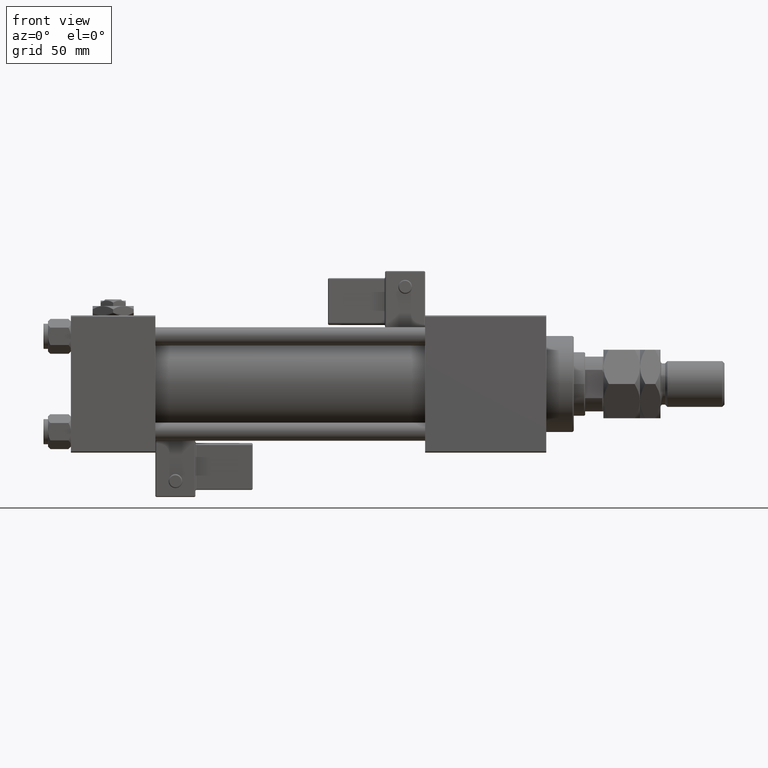
[diagram: clean part render]
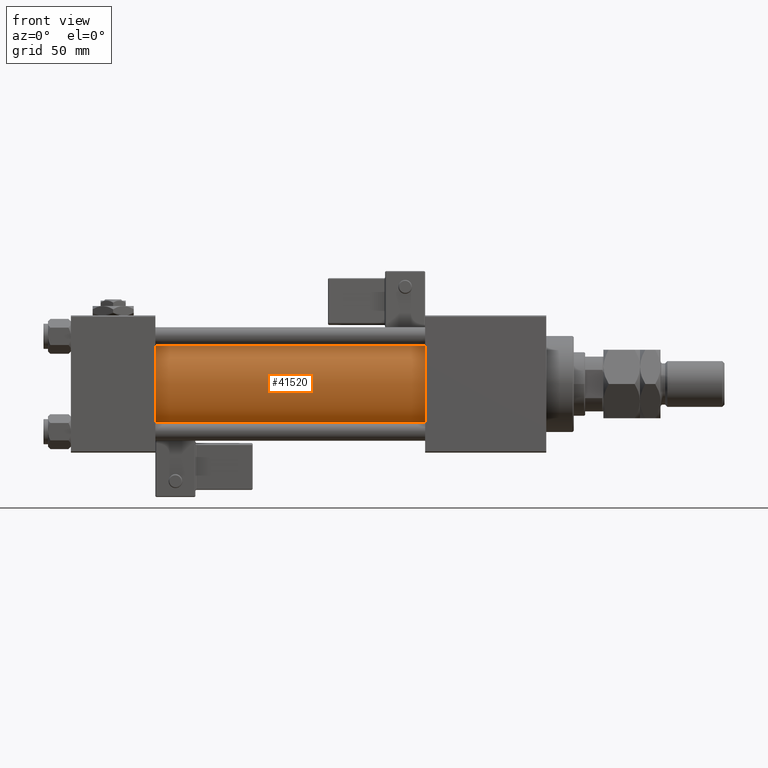
[diagram: same view with one face highlighted and labeled with its STEP entity id]
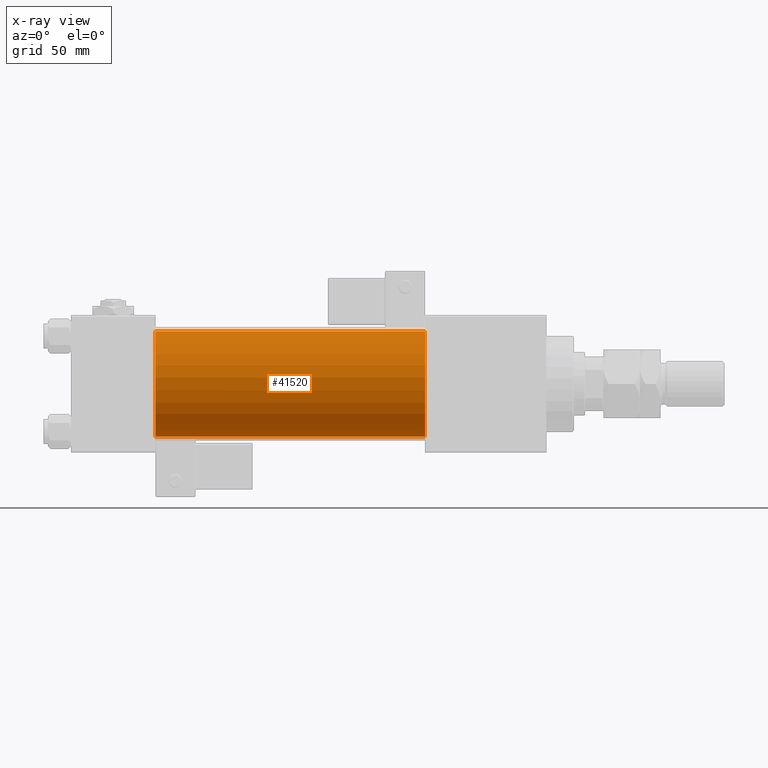
[diagram: x-ray of the same camera — body ghosted, the highlighted face saturated]
A machine part, front view. The second image highlights one B-rep face of the part: STEP entity #41520.
The next image is the same camera in x-ray: the body ghosted, the highlighted face saturated — about 0% of this face is hidden behind the body in this view.
In plain terms, the highlighted cylindrical surface (partial cylindrical patch) has radius 23 mm, axis along (-1, -0, -0).
Its self-contained STEP definition (entity closure, byte-faithful):
#4861 = LINE ( 'NONE', #17005, #7028 ) ;
#5184 = DIRECTION ( 'NONE',  ( 0.000000000000000000, 0.000000000000000000, -1.000000000000000000 ) ) ;
#7028 = VECTOR ( 'NONE', #29723, 1000.000000000000000 ) ;
#7266 = AXIS2_PLACEMENT_3D ( 'NONE', #35933, #18163, #5184 ) ;
#7688 = CARTESIAN_POINT ( 'NONE',  ( 155.0000000000000000, -2.602085213965210642E-15, 0.000000000000000000 ) ) ;
#7703 = CARTESIAN_POINT ( 'NONE',  ( 37.00000000000000711, 2.146024240737016609E-16, -23.00000000000000000 ) ) ;
#12465 = FACE_OUTER_BOUND ( 'NONE', #37583, .T. ) ;
#13220 = CARTESIAN_POINT ( 'NONE',  ( 155.0000000000000000, 2.146024240737016609E-16, -23.00000000000000000 ) ) ;
#13696 = CARTESIAN_POINT ( 'NONE',  ( 37.00000000000000711, -2.602085213965210642E-15, 0.000000000000000000 ) ) ;
#15004 = ORIENTED_EDGE ( 'NONE', *, *, #43696, .T. ) ;
#17005 = CARTESIAN_POINT ( 'NONE',  ( 155.0000000000000000, 2.146024240737016609E-16, -23.00000000000000000 ) ) ;
#17746 = VERTEX_POINT ( 'NONE', #7703 ) ;
#18163 = DIRECTION ( 'NONE',  ( 1.000000000000000000, 0.000000000000000000, 0.000000000000000000 ) ) ;
#18493 = DIRECTION ( 'NONE',  ( 0.000000000000000000, 0.000000000000000000, 1.000000000000000000 ) ) ;
#20600 = ORIENTED_EDGE ( 'NONE', *, *, #20932, .T. ) ;
#20932 = EDGE_CURVE ( 'NONE', #28652, #31920, #46922, .T. ) ;
#23938 = EDGE_CURVE ( 'NONE', #28652, #31313, #32531, .T. ) ;
#24391 = CARTESIAN_POINT ( 'NONE',  ( 155.0000000000000000, -2.602085213965210642E-15, 23.00000000000000000 ) ) ;
#24648 = CYLINDRICAL_SURFACE ( 'NONE', #45871, 23.00000000000000000 ) ;
#25196 = DIRECTION ( 'NONE',  ( 0.000000000000000000, 0.000000000000000000, 1.000000000000000000 ) ) ;
#25756 = AXIS2_PLACEMENT_3D ( 'NONE', #13696, #30923, #18493 ) ;
#28007 = CARTESIAN_POINT ( 'NONE',  ( 155.0000000000000000, -2.602085213965210642E-15, 23.00000000000000000 ) ) ;
#28652 = VERTEX_POINT ( 'NONE', #28007 ) ;
#29723 = DIRECTION ( 'NONE',  ( -1.000000000000000000, -0.000000000000000000, -0.000000000000000000 ) ) ;
#30923 = DIRECTION ( 'NONE',  ( 1.000000000000000000, -0.000000000000000000, 0.000000000000000000 ) ) ;
#31313 = VERTEX_POINT ( 'NONE', #13220 ) ;
#31920 = VERTEX_POINT ( 'NONE', #45372 ) ;
#32531 = CIRCLE ( 'NONE', #7266, 23.00000000000000000 ) ;
#32537 = VECTOR ( 'NONE', #50328, 1000.000000000000000 ) ;
#35933 = CARTESIAN_POINT ( 'NONE',  ( 155.0000000000000000, -2.602085213965210642E-15, 0.000000000000000000 ) ) ;
#36054 = ORIENTED_EDGE ( 'NONE', *, *, #52244, .F. ) ;
#37583 = EDGE_LOOP ( 'NONE', ( #36054, #49652, #20600, #15004 ) ) ;
#40181 = CIRCLE ( 'NONE', #25756, 23.00000000000000000 ) ;
#41520 = ADVANCED_FACE ( 'NONE', ( #12465 ), #24648, .T. ) ;
#41853 = DIRECTION ( 'NONE',  ( -1.000000000000000000, -0.000000000000000000, -0.000000000000000000 ) ) ;
#43696 = EDGE_CURVE ( 'NONE', #31920, #17746, #40181, .T. ) ;
#45372 = CARTESIAN_POINT ( 'NONE',  ( 37.00000000000000711, -2.602085213965210642E-15, 23.00000000000000000 ) ) ;
#45871 = AXIS2_PLACEMENT_3D ( 'NONE', #7688, #41853, #25196 ) ;
#46922 = LINE ( 'NONE', #24391, #32537 ) ;
#49652 = ORIENTED_EDGE ( 'NONE', *, *, #23938, .F. ) ;
#50328 = DIRECTION ( 'NONE',  ( -1.000000000000000000, -0.000000000000000000, -0.000000000000000000 ) ) ;
#52244 = EDGE_CURVE ( 'NONE', #31313, #17746, #4861, .T. ) ;